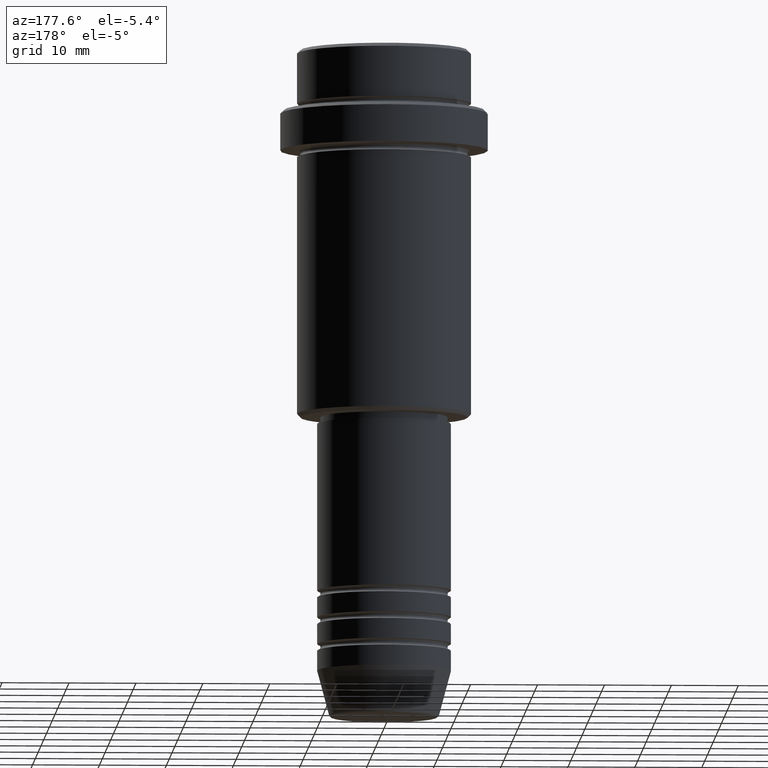
[diagram: clean part render]
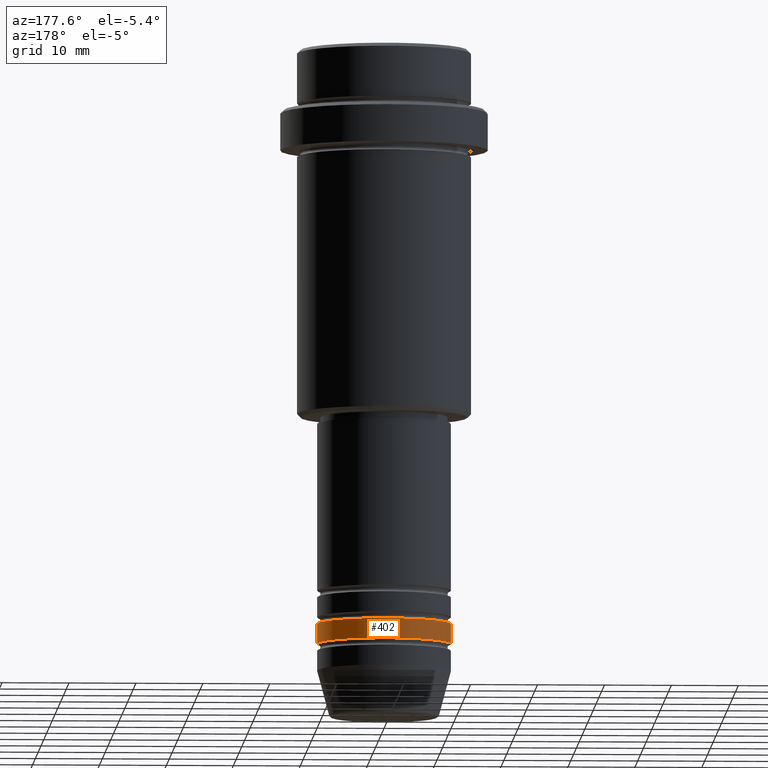
[diagram: same view with one face highlighted and labeled with its STEP entity id]
A machine part, auxiliary view. The second image highlights one B-rep face of the part: STEP entity #402.
In plain terms, the highlighted cylindrical surface (partial cylindrical patch) has radius 10 mm, axis along (-0, -0, 1).
Its self-contained STEP definition (entity closure, byte-faithful):
#18 = VERTEX_POINT ( 'NONE', #890 ) ;
#31 = EDGE_CURVE ( 'NONE', #215, #18, #350, .T. ) ;
#47 = AXIS2_PLACEMENT_3D ( 'NONE', #59, #80, #387 ) ;
#48 = DIRECTION ( 'NONE',  ( 1.000000000000000000, 0.000000000000000000, 0.000000000000000000 ) ) ;
#59 = CARTESIAN_POINT ( 'NONE',  ( 0.000000000000000000, 0.000000000000000000, -88.99999999999988631 ) ) ;
#80 = DIRECTION ( 'NONE',  ( -0.000000000000000000, -0.000000000000000000, 1.000000000000000000 ) ) ;
#113 = AXIS2_PLACEMENT_3D ( 'NONE', #339, #1228, #243 ) ;
#123 = CYLINDRICAL_SURFACE ( 'NONE', #113, 10.00000000000000000 ) ;
#145 = DIRECTION ( 'NONE',  ( -0.000000000000000000, -0.000000000000000000, 1.000000000000000000 ) ) ;
#186 = VERTEX_POINT ( 'NONE', #1159 ) ;
#215 = VERTEX_POINT ( 'NONE', #859 ) ;
#225 = LINE ( 'NONE', #858, #1243 ) ;
#235 = CARTESIAN_POINT ( 'NONE',  ( -10.00000000000000000, 1.224646799147353256E-15, -88.99999999999988631 ) ) ;
#243 = DIRECTION ( 'NONE',  ( 1.000000000000000000, 0.000000000000000000, 0.000000000000000000 ) ) ;
#308 = EDGE_LOOP ( 'NONE', ( #1141, #672, #1341, #1320 ) ) ;
#339 = CARTESIAN_POINT ( 'NONE',  ( 0.000000000000000000, 0.000000000000000000, 0.000000000000000000 ) ) ;
#350 = LINE ( 'NONE', #461, #1052 ) ;
#387 = DIRECTION ( 'NONE',  ( 1.000000000000000000, 0.000000000000000000, 0.000000000000000000 ) ) ;
#402 = ADVANCED_FACE ( 'NONE', ( #665 ), #123, .T. ) ;
#449 = DIRECTION ( 'NONE',  ( -0.000000000000000000, -0.000000000000000000, 1.000000000000000000 ) ) ;
#461 = CARTESIAN_POINT ( 'NONE',  ( 10.00000000000000000, 0.000000000000000000, 0.000000000000000000 ) ) ;
#470 = EDGE_CURVE ( 'NONE', #18, #186, #1145, .T. ) ;
#569 = DIRECTION ( 'NONE',  ( -0.000000000000000000, -0.000000000000000000, 1.000000000000000000 ) ) ;
#665 = FACE_OUTER_BOUND ( 'NONE', #308, .T. ) ;
#666 = CIRCLE ( 'NONE', #47, 10.00000000000000000 ) ;
#672 = ORIENTED_EDGE ( 'NONE', *, *, #1352, .T. ) ;
#696 = CARTESIAN_POINT ( 'NONE',  ( 0.000000000000000000, 0.000000000000000000, -85.99999999999988631 ) ) ;
#702 = EDGE_CURVE ( 'NONE', #215, #878, #666, .T. ) ;
#805 = AXIS2_PLACEMENT_3D ( 'NONE', #696, #145, #48 ) ;
#858 = CARTESIAN_POINT ( 'NONE',  ( -10.00000000000000000, 1.224646799147353256E-15, 0.000000000000000000 ) ) ;
#859 = CARTESIAN_POINT ( 'NONE',  ( 10.00000000000000000, 0.000000000000000000, -88.99999999999988631 ) ) ;
#878 = VERTEX_POINT ( 'NONE', #235 ) ;
#890 = CARTESIAN_POINT ( 'NONE',  ( 10.00000000000000000, 0.000000000000000000, -85.99999999999988631 ) ) ;
#1052 = VECTOR ( 'NONE', #569, 1000.000000000000000 ) ;
#1141 = ORIENTED_EDGE ( 'NONE', *, *, #702, .T. ) ;
#1145 = CIRCLE ( 'NONE', #805, 10.00000000000000000 ) ;
#1159 = CARTESIAN_POINT ( 'NONE',  ( -10.00000000000000000, 1.224646799147353256E-15, -85.99999999999988631 ) ) ;
#1228 = DIRECTION ( 'NONE',  ( -0.000000000000000000, -0.000000000000000000, 1.000000000000000000 ) ) ;
#1243 = VECTOR ( 'NONE', #449, 1000.000000000000000 ) ;
#1320 = ORIENTED_EDGE ( 'NONE', *, *, #31, .F. ) ;
#1341 = ORIENTED_EDGE ( 'NONE', *, *, #470, .F. ) ;
#1352 = EDGE_CURVE ( 'NONE', #878, #186, #225, .T. ) ;